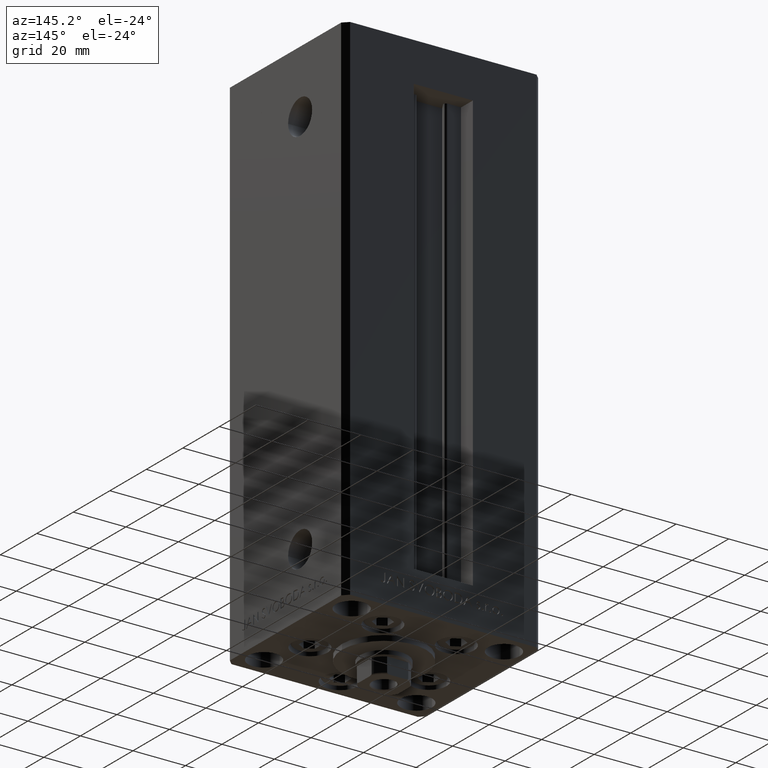
[diagram: clean part render]
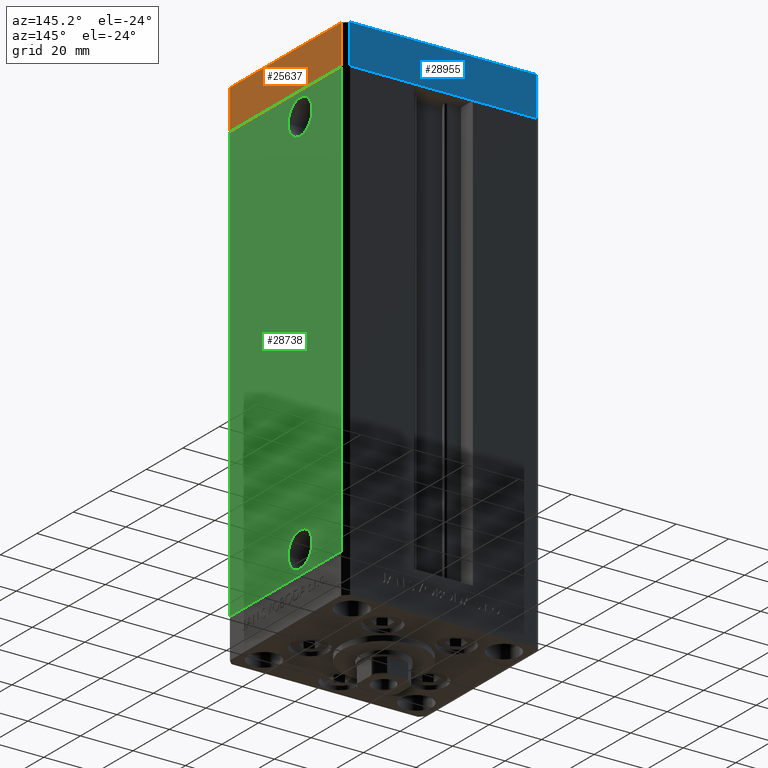
[diagram: same view with three faces highlighted in distinct colors, each labeled with its STEP entity id]
A machine part, auxiliary view with three faces highlighted in distinct colors.
Their STEP definitions:

[orange] entity #25637 — the highlighted planar face has unit normal (1, 0, 0).
#555 = DIRECTION ( 'NONE',  ( 0.000000000000000000, 0.000000000000000000, 1.000000000000000000 ) ) ;
#1144 = DIRECTION ( 'NONE',  ( -1.478780668045803018E-15, 1.000000000000000000, 0.000000000000000000 ) ) ;
#2981 = ORIENTED_EDGE ( 'NONE', *, *, #25956, .T. ) ;
#3366 = CARTESIAN_POINT ( 'NONE',  ( 37.49999999999992184, 30.50000000000001066, -15.00000000000000000 ) ) ;
#3773 = DIRECTION ( 'NONE',  ( -1.478780668045802821E-15, 1.000000000000000000, 0.000000000000000000 ) ) ;
#4307 = LINE ( 'NONE', #34704, #44438 ) ;
#6197 = CARTESIAN_POINT ( 'NONE',  ( 37.50000000000001421, -30.50000000000000711, -15.00000000000000000 ) ) ;
#8875 = PLANE ( 'NONE',  #36805 ) ;
#11260 = VERTEX_POINT ( 'NONE', #23213 ) ;
#11414 = VECTOR ( 'NONE', #45003, 1000.000000000000000 ) ;
#13722 = VECTOR ( 'NONE', #3773, 1000.000000000000000 ) ;
#17323 = FACE_OUTER_BOUND ( 'NONE', #39298, .T. ) ;
#18846 = ORIENTED_EDGE ( 'NONE', *, *, #34881, .F. ) ;
#21404 = LINE ( 'NONE', #43576, #25409 ) ;
#23213 = CARTESIAN_POINT ( 'NONE',  ( 37.49999999999992184, 30.50000000000001066, 0.000000000000000000 ) ) ;
#25409 = VECTOR ( 'NONE', #36590, 1000.000000000000000 ) ;
#25637 = ADVANCED_FACE ( 'NONE', ( #17323 ), #8875, .T. ) ;
#25956 = EDGE_CURVE ( 'NONE', #33132, #37068, #26224, .T. ) ;
#26224 = LINE ( 'NONE', #41434, #13722 ) ;
#26533 = CARTESIAN_POINT ( 'NONE',  ( 37.50000000000001421, -30.50000000000000711, 0.000000000000000000 ) ) ;
#27934 = EDGE_CURVE ( 'NONE', #37068, #11260, #33282, .T. ) ;
#28950 = CARTESIAN_POINT ( 'NONE',  ( 37.49999999999992184, 30.50000000000001066, -15.00000000000000000 ) ) ;
#31796 = CARTESIAN_POINT ( 'NONE',  ( 37.50000000000001421, -30.50000000000000711, -15.00000000000000000 ) ) ;
#33132 = VERTEX_POINT ( 'NONE', #6197 ) ;
#33282 = LINE ( 'NONE', #3366, #11414 ) ;
#34704 = CARTESIAN_POINT ( 'NONE',  ( 37.50000000000001421, -30.50000000000000711, -15.00000000000000000 ) ) ;
#34881 = EDGE_CURVE ( 'NONE', #48797, #11260, #21404, .T. ) ;
#36590 = DIRECTION ( 'NONE',  ( -1.478780668045802821E-15, 1.000000000000000000, 0.000000000000000000 ) ) ;
#36805 = AXIS2_PLACEMENT_3D ( 'NONE', #31796, #39764, #1144 ) ;
#36984 = EDGE_CURVE ( 'NONE', #33132, #48797, #4307, .T. ) ;
#37068 = VERTEX_POINT ( 'NONE', #28950 ) ;
#39298 = EDGE_LOOP ( 'NONE', ( #18846, #49239, #2981, #40562 ) ) ;
#39764 = DIRECTION ( 'NONE',  ( 1.000000000000000000, 1.478780668045803018E-15, -0.000000000000000000 ) ) ;
#40562 = ORIENTED_EDGE ( 'NONE', *, *, #27934, .T. ) ;
#41434 = CARTESIAN_POINT ( 'NONE',  ( 37.50000000000001421, -30.50000000000000711, -15.00000000000000000 ) ) ;
#43576 = CARTESIAN_POINT ( 'NONE',  ( 37.50000000000001421, -30.50000000000000711, 0.000000000000000000 ) ) ;
#44438 = VECTOR ( 'NONE', #555, 1000.000000000000000 ) ;
#45003 = DIRECTION ( 'NONE',  ( 0.000000000000000000, 0.000000000000000000, 1.000000000000000000 ) ) ;
#48797 = VERTEX_POINT ( 'NONE', #26533 ) ;
#49239 = ORIENTED_EDGE ( 'NONE', *, *, #36984, .F. ) ;

[blue] entity #28955 — the highlighted planar face has unit normal (-0, 1, 0).
#501 = CARTESIAN_POINT ( 'NONE',  ( 35.49999999999992184, 32.50000000000000711, -15.00000000000000000 ) ) ;
#675 = LINE ( 'NONE', #8183, #24801 ) ;
#1955 = VERTEX_POINT ( 'NONE', #48571 ) ;
#2645 = CARTESIAN_POINT ( 'NONE',  ( 35.49999999999992184, 32.50000000000000711, 0.000000000000000000 ) ) ;
#5483 = ORIENTED_EDGE ( 'NONE', *, *, #34121, .F. ) ;
#6961 = CARTESIAN_POINT ( 'NONE',  ( -35.50000000000002842, 32.49999999999999289, -15.00000000000000000 ) ) ;
#6978 = VECTOR ( 'NONE', #46142, 1000.000000000000000 ) ;
#7768 = ORIENTED_EDGE ( 'NONE', *, *, #11224, .T. ) ;
#8183 = CARTESIAN_POINT ( 'NONE',  ( 35.49999999999992184, 32.50000000000000711, -15.00000000000000000 ) ) ;
#11224 = EDGE_CURVE ( 'NONE', #24329, #48334, #26954, .T. ) ;
#12825 = CARTESIAN_POINT ( 'NONE',  ( 35.49999999999992184, 32.50000000000000711, -15.00000000000000000 ) ) ;
#13141 = LINE ( 'NONE', #2645, #23779 ) ;
#16325 = DIRECTION ( 'NONE',  ( -1.000000000000000000, -1.954618001100629052E-16, 0.000000000000000000 ) ) ;
#19340 = PLANE ( 'NONE',  #24843 ) ;
#20076 = FACE_OUTER_BOUND ( 'NONE', #37820, .T. ) ;
#23779 = VECTOR ( 'NONE', #36294, 1000.000000000000000 ) ;
#23794 = DIRECTION ( 'NONE',  ( -1.954618001100629052E-16, 1.000000000000000000, 0.000000000000000000 ) ) ;
#24329 = VERTEX_POINT ( 'NONE', #6961 ) ;
#24801 = VECTOR ( 'NONE', #34076, 1000.000000000000000 ) ;
#24843 = AXIS2_PLACEMENT_3D ( 'NONE', #12825, #23794, #16325 ) ;
#26954 = LINE ( 'NONE', #42148, #6978 ) ;
#27846 = LINE ( 'NONE', #501, #35786 ) ;
#28955 = ADVANCED_FACE ( 'NONE', ( #20076 ), #19340, .T. ) ;
#30822 = ORIENTED_EDGE ( 'NONE', *, *, #40408, .T. ) ;
#34076 = DIRECTION ( 'NONE',  ( 0.000000000000000000, 0.000000000000000000, 1.000000000000000000 ) ) ;
#34121 = EDGE_CURVE ( 'NONE', #1955, #48334, #13141, .T. ) ;
#35786 = VECTOR ( 'NONE', #41888, 1000.000000000000000 ) ;
#36294 = DIRECTION ( 'NONE',  ( -1.000000000000000000, -1.954618001100629052E-16, 0.000000000000000000 ) ) ;
#37092 = ORIENTED_EDGE ( 'NONE', *, *, #44835, .F. ) ;
#37820 = EDGE_LOOP ( 'NONE', ( #5483, #37092, #30822, #7768 ) ) ;
#40408 = EDGE_CURVE ( 'NONE', #43513, #24329, #27846, .T. ) ;
#40560 = CARTESIAN_POINT ( 'NONE',  ( -35.50000000000002842, 32.49999999999999289, 0.000000000000000000 ) ) ;
#41888 = DIRECTION ( 'NONE',  ( -1.000000000000000000, -1.954618001100629052E-16, 0.000000000000000000 ) ) ;
#42148 = CARTESIAN_POINT ( 'NONE',  ( -35.50000000000002842, 32.49999999999999289, -15.00000000000000000 ) ) ;
#42845 = CARTESIAN_POINT ( 'NONE',  ( 35.49999999999992184, 32.50000000000000711, -15.00000000000000000 ) ) ;
#43513 = VERTEX_POINT ( 'NONE', #42845 ) ;
#44835 = EDGE_CURVE ( 'NONE', #43513, #1955, #675, .T. ) ;
#46142 = DIRECTION ( 'NONE',  ( 0.000000000000000000, 0.000000000000000000, 1.000000000000000000 ) ) ;
#48334 = VERTEX_POINT ( 'NONE', #40560 ) ;
#48571 = CARTESIAN_POINT ( 'NONE',  ( 35.49999999999992184, 32.50000000000000711, 0.000000000000000000 ) ) ;

[green] entity #28738 — the highlighted planar face has unit normal (1, -0, 0).
#680 = ORIENTED_EDGE ( 'NONE', *, *, #26357, .F. ) ;
#2714 = CARTESIAN_POINT ( 'NONE',  ( 37.50000000000000000, 7.999999999999991118, 8.999999999999994671 ) ) ;
#2718 = CARTESIAN_POINT ( 'NONE',  ( 37.50000000000000711, 30.50000000000000000, 166.0000000000000000 ) ) ;
#2956 = DIRECTION ( 'NONE',  ( -0.000000000000000000, -0.000000000000000000, -1.000000000000000000 ) ) ;
#3631 = CARTESIAN_POINT ( 'NONE',  ( 37.50000000000000711, 30.50000000000000000, 0.000000000000000000 ) ) ;
#3906 = CARTESIAN_POINT ( 'NONE',  ( 37.50000000000000000, 7.999999999999991118, 157.0000000000000000 ) ) ;
#4148 = AXIS2_PLACEMENT_3D ( 'NONE', #13373, #24585, #32554 ) ;
#4477 = CARTESIAN_POINT ( 'NONE',  ( 37.49999999999999289, -30.50000000000000000, 166.0000000000000000 ) ) ;
#4869 = EDGE_CURVE ( 'NONE', #34230, #45472, #46516, .T. ) ;
#5564 = ORIENTED_EDGE ( 'NONE', *, *, #36471, .F. ) ;
#5755 = AXIS2_PLACEMENT_3D ( 'NONE', #3906, #19125, #42542 ) ;
#6138 = FACE_OUTER_BOUND ( 'NONE', #21677, .T. ) ;
#6724 = LINE ( 'NONE', #2718, #17513 ) ;
#7015 = CARTESIAN_POINT ( 'NONE',  ( 37.50000000000000000, 1.419999999999975948, 157.0000000000000000 ) ) ;
#8468 = ORIENTED_EDGE ( 'NONE', *, *, #4869, .F. ) ;
#8627 = CIRCLE ( 'NONE', #22141, 6.580000000000006288 ) ;
#10048 = ORIENTED_EDGE ( 'NONE', *, *, #40257, .T. ) ;
#10458 = DIRECTION ( 'NONE',  ( 1.000000000000000000, -2.275047181608927644E-16, 0.000000000000000000 ) ) ;
#11009 = VERTEX_POINT ( 'NONE', #17760 ) ;
#11339 = CIRCLE ( 'NONE', #5755, 6.580000000000014282 ) ;
#13373 = CARTESIAN_POINT ( 'NONE',  ( 37.50000000000000711, 30.50000000000000000, 166.0000000000000000 ) ) ;
#13428 = ORIENTED_EDGE ( 'NONE', *, *, #24327, .T. ) ;
#13868 = VERTEX_POINT ( 'NONE', #7015 ) ;
#14625 = DIRECTION ( 'NONE',  ( -2.275047181608927644E-16, -1.000000000000000000, 0.000000000000000000 ) ) ;
#14729 = VECTOR ( 'NONE', #46749, 1000.000000000000000 ) ;
#15104 = LINE ( 'NONE', #3631, #48549 ) ;
#16643 = ORIENTED_EDGE ( 'NONE', *, *, #40686, .F. ) ;
#17197 = DIRECTION ( 'NONE',  ( -2.275047181608927644E-16, -1.000000000000000000, 0.000000000000000000 ) ) ;
#17513 = VECTOR ( 'NONE', #17197, 1000.000000000000000 ) ;
#17760 = CARTESIAN_POINT ( 'NONE',  ( 37.50000000000000000, 1.419999999999985496, 8.999999999999994671 ) ) ;
#17937 = DIRECTION ( 'NONE',  ( 0.000000000000000000, 1.000000000000000000, 0.000000000000000000 ) ) ;
#18838 = DIRECTION ( 'NONE',  ( 1.000000000000000000, -2.275047181608927644E-16, 0.000000000000000000 ) ) ;
#19125 = DIRECTION ( 'NONE',  ( 1.000000000000000000, -2.275047181608927644E-16, 0.000000000000000000 ) ) ;
#20100 = CARTESIAN_POINT ( 'NONE',  ( 37.50000000000000711, 30.50000000000000000, 166.0000000000000000 ) ) ;
#21180 = VERTEX_POINT ( 'NONE', #48956 ) ;
#21598 = PLANE ( 'NONE',  #4148 ) ;
#21677 = EDGE_LOOP ( 'NONE', ( #16643, #8468, #10048, #13428 ) ) ;
#21918 = LINE ( 'NONE', #45082, #30372 ) ;
#22141 = AXIS2_PLACEMENT_3D ( 'NONE', #44268, #18838, #26061 ) ;
#22759 = CARTESIAN_POINT ( 'NONE',  ( 37.49999999999999289, -30.50000000000000000, 0.000000000000000000 ) ) ;
#24327 = EDGE_CURVE ( 'NONE', #27320, #33735, #21918, .T. ) ;
#24367 = EDGE_CURVE ( 'NONE', #11009, #21180, #24779, .T. ) ;
#24585 = DIRECTION ( 'NONE',  ( 1.000000000000000000, -2.275047181608927644E-16, 0.000000000000000000 ) ) ;
#24779 = CIRCLE ( 'NONE', #46318, 6.580000000000006288 ) ;
#25019 = DIRECTION ( 'NONE',  ( 0.000000000000000000, 1.000000000000000000, 0.000000000000000000 ) ) ;
#25421 = VERTEX_POINT ( 'NONE', #28605 ) ;
#26061 = DIRECTION ( 'NONE',  ( 0.000000000000000000, 1.000000000000000000, 0.000000000000000000 ) ) ;
#26349 = ORIENTED_EDGE ( 'NONE', *, *, #24367, .F. ) ;
#26357 = EDGE_CURVE ( 'NONE', #13868, #25421, #11339, .T. ) ;
#27320 = VERTEX_POINT ( 'NONE', #4477 ) ;
#28605 = CARTESIAN_POINT ( 'NONE',  ( 37.50000000000000000, 14.58000000000000540, 157.0000000000000000 ) ) ;
#28738 = ADVANCED_FACE ( 'NONE', ( #36051, #32306, #6138 ), #21598, .T. ) ;
#28771 = DIRECTION ( 'NONE',  ( 1.000000000000000000, -2.275047181608927644E-16, 0.000000000000000000 ) ) ;
#30372 = VECTOR ( 'NONE', #2956, 1000.000000000000000 ) ;
#32306 = FACE_BOUND ( 'NONE', #37814, .T. ) ;
#32554 = DIRECTION ( 'NONE',  ( 2.275047181608927644E-16, 1.000000000000000000, 0.000000000000000000 ) ) ;
#33735 = VERTEX_POINT ( 'NONE', #22759 ) ;
#34230 = VERTEX_POINT ( 'NONE', #45502 ) ;
#35835 = EDGE_LOOP ( 'NONE', ( #5564, #26349 ) ) ;
#36051 = FACE_BOUND ( 'NONE', #35835, .T. ) ;
#36471 = EDGE_CURVE ( 'NONE', #21180, #11009, #8627, .T. ) ;
#37814 = EDGE_LOOP ( 'NONE', ( #46292, #680 ) ) ;
#38941 = CARTESIAN_POINT ( 'NONE',  ( 37.50000000000000711, 30.50000000000000000, 0.000000000000000000 ) ) ;
#40257 = EDGE_CURVE ( 'NONE', #34230, #27320, #6724, .T. ) ;
#40686 = EDGE_CURVE ( 'NONE', #45472, #33735, #15104, .T. ) ;
#42542 = DIRECTION ( 'NONE',  ( 0.000000000000000000, 1.000000000000000000, 0.000000000000000000 ) ) ;
#44268 = CARTESIAN_POINT ( 'NONE',  ( 37.50000000000000000, 7.999999999999991118, 8.999999999999994671 ) ) ;
#44768 = CIRCLE ( 'NONE', #47150, 6.580000000000014282 ) ;
#45082 = CARTESIAN_POINT ( 'NONE',  ( 37.49999999999999289, -30.50000000000000000, 166.0000000000000000 ) ) ;
#45472 = VERTEX_POINT ( 'NONE', #38941 ) ;
#45502 = CARTESIAN_POINT ( 'NONE',  ( 37.50000000000000711, 30.50000000000000000, 166.0000000000000000 ) ) ;
#46292 = ORIENTED_EDGE ( 'NONE', *, *, #46361, .F. ) ;
#46318 = AXIS2_PLACEMENT_3D ( 'NONE', #2714, #10458, #17937 ) ;
#46361 = EDGE_CURVE ( 'NONE', #25421, #13868, #44768, .T. ) ;
#46516 = LINE ( 'NONE', #20100, #14729 ) ;
#46749 = DIRECTION ( 'NONE',  ( -0.000000000000000000, -0.000000000000000000, -1.000000000000000000 ) ) ;
#47150 = AXIS2_PLACEMENT_3D ( 'NONE', #48703, #28771, #25019 ) ;
#48549 = VECTOR ( 'NONE', #14625, 1000.000000000000000 ) ;
#48703 = CARTESIAN_POINT ( 'NONE',  ( 37.50000000000000000, 7.999999999999991118, 157.0000000000000000 ) ) ;
#48956 = CARTESIAN_POINT ( 'NONE',  ( 37.50000000000000000, 14.57999999999999829, 8.999999999999994671 ) ) ;